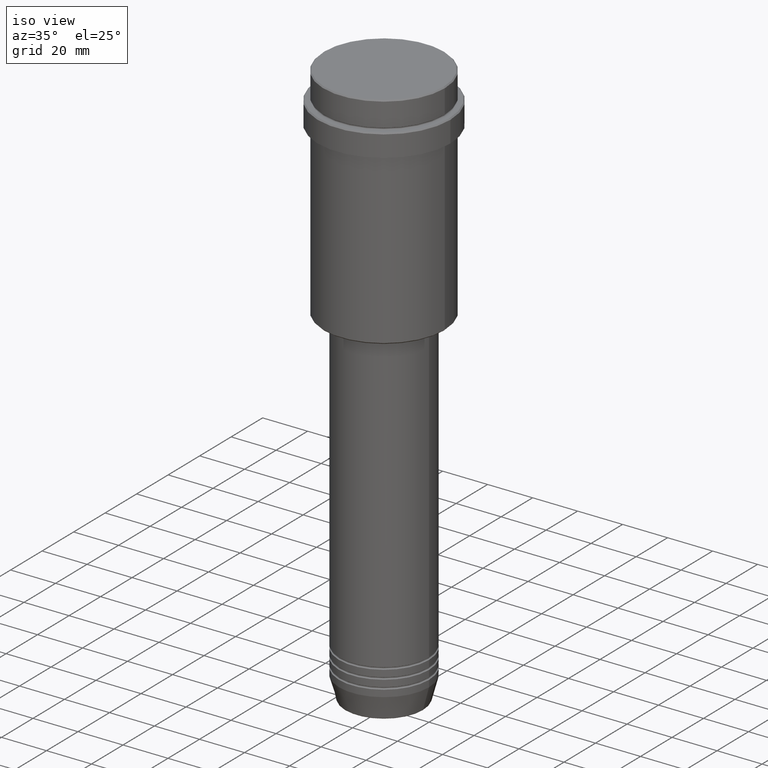
[diagram: clean part render]
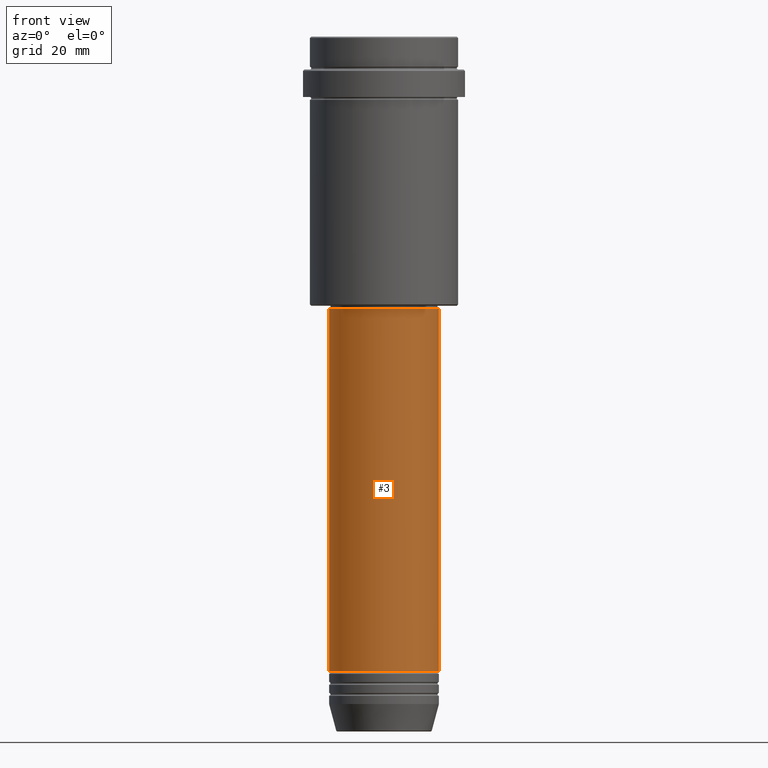
[diagram: tour spotlight — one face highlighted and labeled with its STEP entity id]
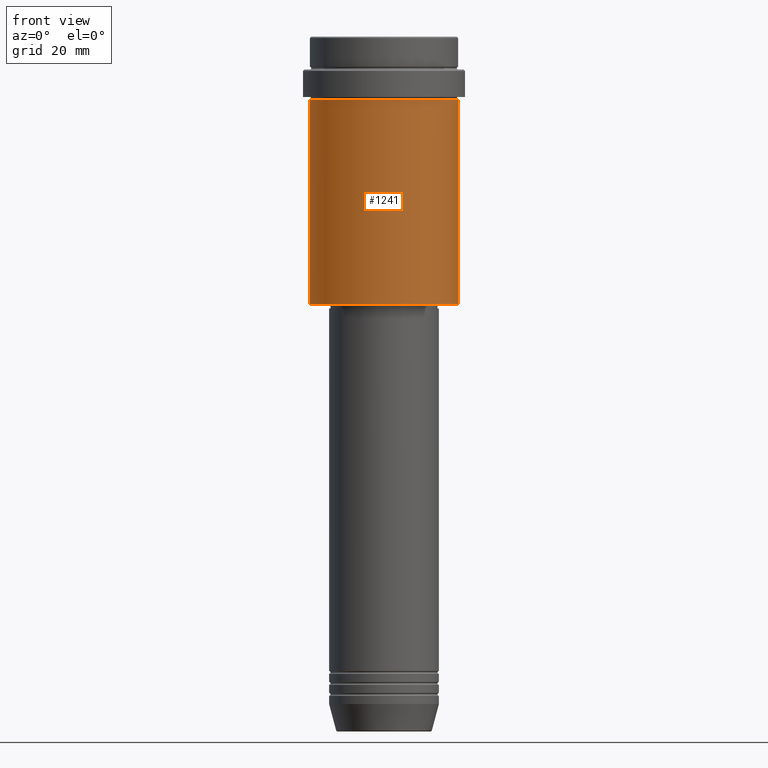
[diagram: tour spotlight — one face highlighted and labeled with its STEP entity id]
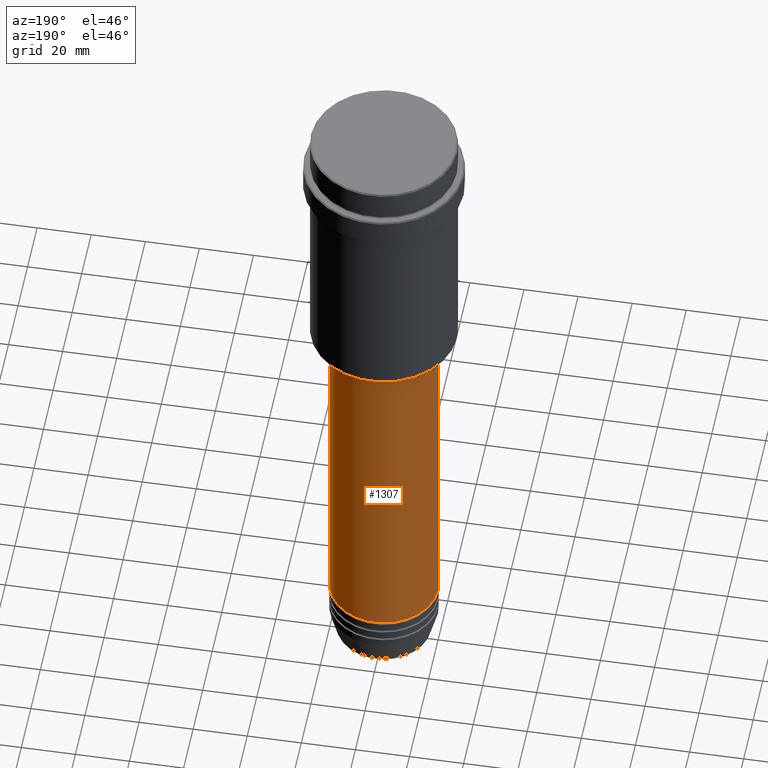
[diagram: tour spotlight — one face highlighted and labeled with its STEP entity id]
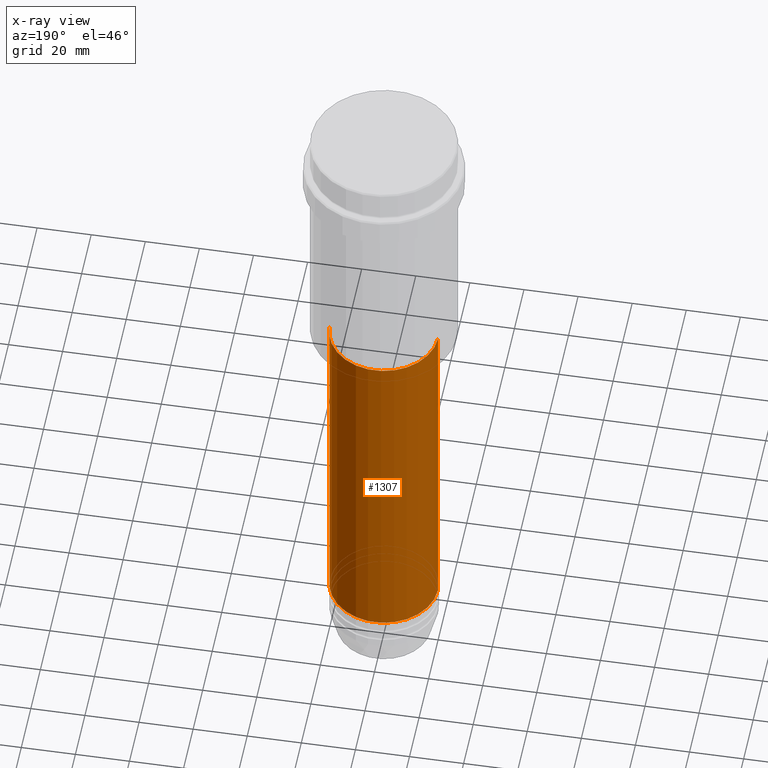
[diagram: x-ray of the same camera — body ghosted, this tour face saturated]
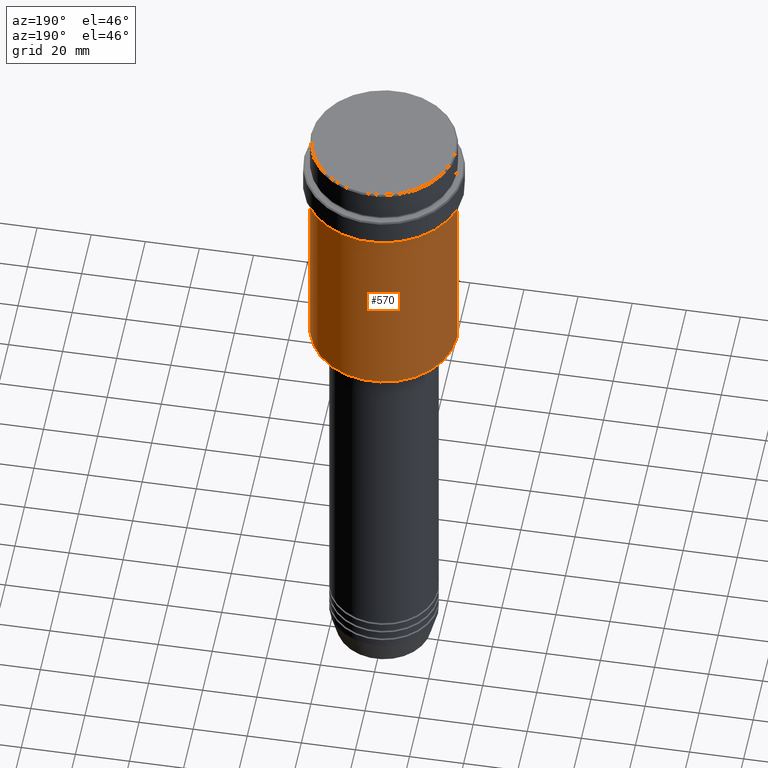
[diagram: tour spotlight — one face highlighted and labeled with its STEP entity id]
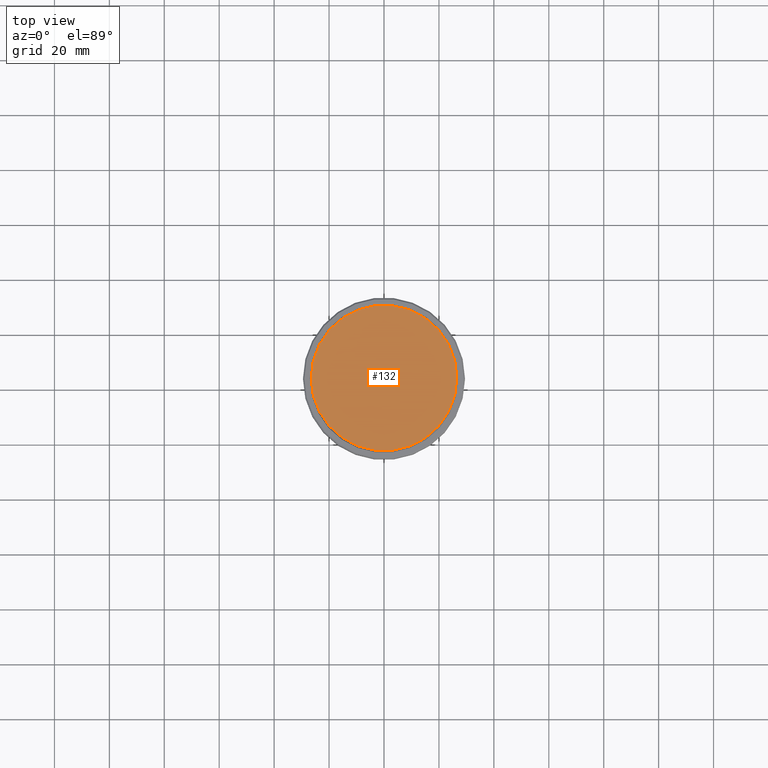
[diagram: tour spotlight — one face highlighted and labeled with its STEP entity id]
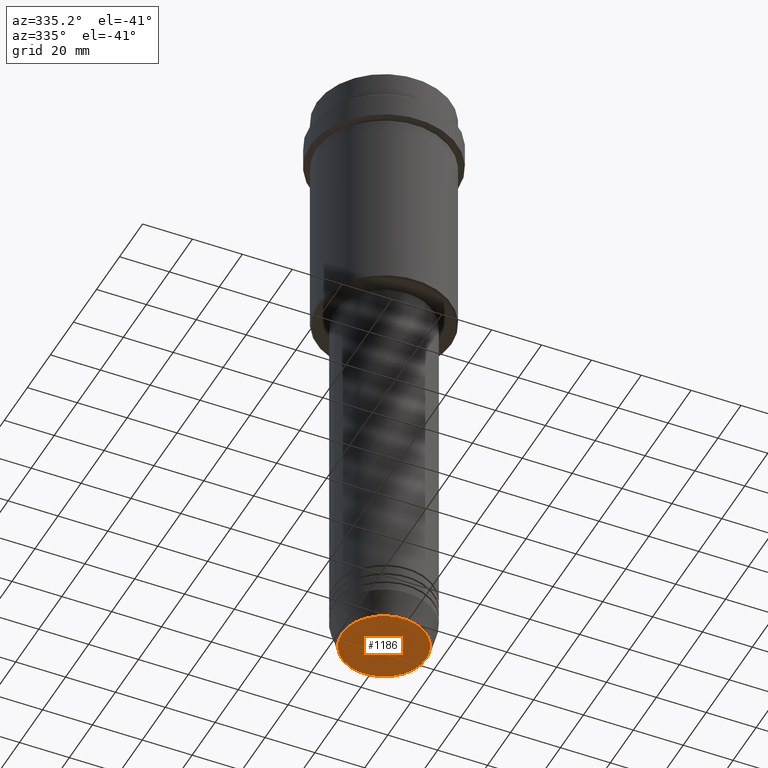
[diagram: tour spotlight — one face highlighted and labeled with its STEP entity id]
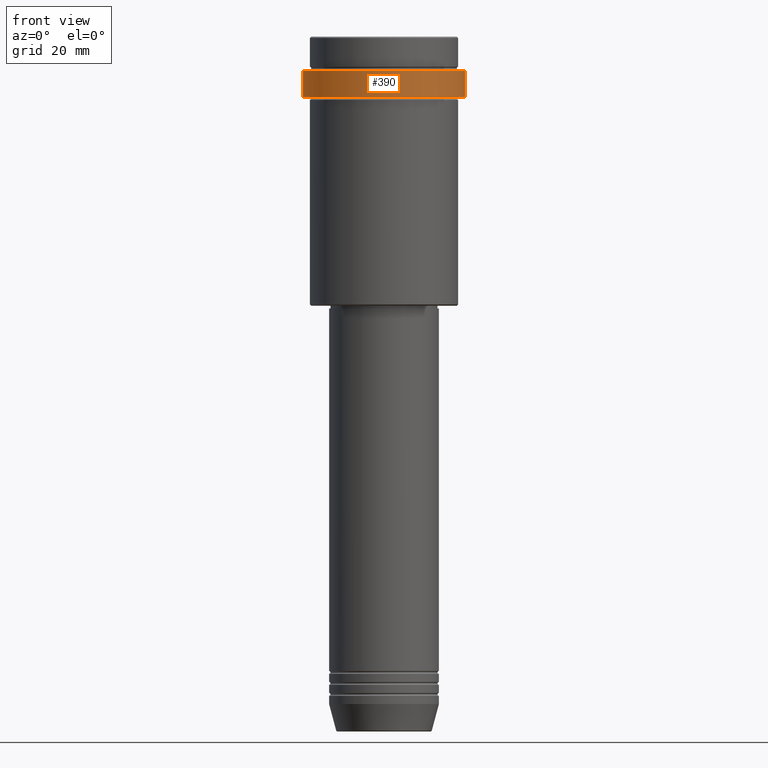
[diagram: tour spotlight — one face highlighted and labeled with its STEP entity id]
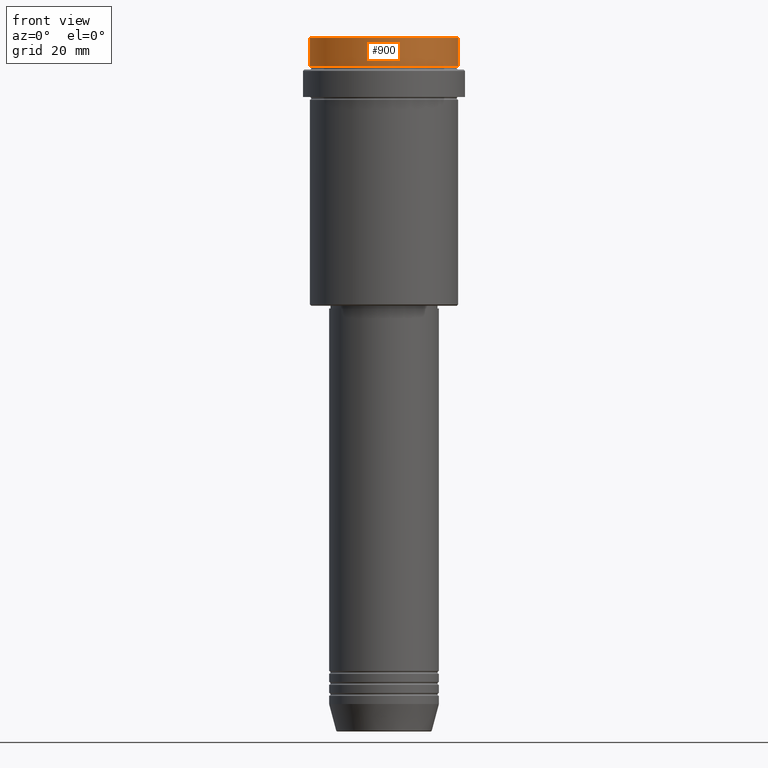
[diagram: tour spotlight — one face highlighted and labeled with its STEP entity id]
A machine part: a face-by-face anatomy tour. The part has 52 B-rep faces; the first image is the clean iso view, then the 8 largest visible faces are spotlighted one at a time (largest first), each with its STEP entity span.

Face 1 — front view, entity #3. In plain terms, the highlighted cylindrical surface (partial cylindrical patch) has radius 20 mm, axis along (-0, -0, 1).
Definition (entity closure, byte-faithful):
#3 = ADVANCED_FACE ( 'NONE', ( #849 ), #1287, .T. ) ;
#5 = AXIS2_PLACEMENT_3D ( 'NONE', #869, #317, #537 ) ;
#75 = DIRECTION ( 'NONE',  ( -0.000000000000000000, -0.000000000000000000, 1.000000000000000000 ) ) ;
#76 = AXIS2_PLACEMENT_3D ( 'NONE', #133, #586, #392 ) ;
#95 = CARTESIAN_POINT ( 'NONE',  ( -20.00000000000000000, 2.449293598294706513E-15, -99.00000000000000000 ) ) ;
#133 = CARTESIAN_POINT ( 'NONE',  ( 0.000000000000000000, 0.000000000000000000, -99.00000000000000000 ) ) ;
#317 = DIRECTION ( 'NONE',  ( -0.000000000000000000, -0.000000000000000000, 1.000000000000000000 ) ) ;
#331 = VECTOR ( 'NONE', #75, 1000.000000000000000 ) ;
#392 = DIRECTION ( 'NONE',  ( 1.000000000000000000, 0.000000000000000000, 0.000000000000000000 ) ) ;
#447 = CIRCLE ( 'NONE', #1027, 20.00000000000000000 ) ;
#475 = CARTESIAN_POINT ( 'NONE',  ( 20.00000000000000000, 0.000000000000000000, -230.9999999999998863 ) ) ;
#527 = VERTEX_POINT ( 'NONE', #1321 ) ;
#536 = LINE ( 'NONE', #1067, #331 ) ;
#537 = DIRECTION ( 'NONE',  ( 1.000000000000000000, 0.000000000000000000, 0.000000000000000000 ) ) ;
#586 = DIRECTION ( 'NONE',  ( -0.000000000000000000, -0.000000000000000000, 1.000000000000000000 ) ) ;
#623 = VERTEX_POINT ( 'NONE', #1150 ) ;
#642 = LINE ( 'NONE', #1017, #1378 ) ;
#684 = VERTEX_POINT ( 'NONE', #475 ) ;
#691 = EDGE_CURVE ( 'NONE', #1204, #527, #1383, .T. ) ;
#766 = CARTESIAN_POINT ( 'NONE',  ( 0.000000000000000000, 0.000000000000000000, -230.9999999999998863 ) ) ;
#795 = EDGE_LOOP ( 'NONE', ( #1366, #1270, #949, #829 ) ) ;
#829 = ORIENTED_EDGE ( 'NONE', *, *, #691, .F. ) ;
#849 = FACE_OUTER_BOUND ( 'NONE', #795, .T. ) ;
#869 = CARTESIAN_POINT ( 'NONE',  ( 0.000000000000000000, 0.000000000000000000, 0.000000000000000000 ) ) ;
#910 = EDGE_CURVE ( 'NONE', #623, #1204, #642, .T. ) ;
#949 = ORIENTED_EDGE ( 'NONE', *, *, #1290, .T. ) ;
#966 = DIRECTION ( 'NONE',  ( 1.000000000000000000, 0.000000000000000000, 0.000000000000000000 ) ) ;
#1017 = CARTESIAN_POINT ( 'NONE',  ( -20.00000000000000000, 2.449293598294706513E-15, 0.000000000000000000 ) ) ;
#1027 = AXIS2_PLACEMENT_3D ( 'NONE', #766, #1208, #966 ) ;
#1067 = CARTESIAN_POINT ( 'NONE',  ( 20.00000000000000000, 0.000000000000000000, 0.000000000000000000 ) ) ;
#1092 = DIRECTION ( 'NONE',  ( -0.000000000000000000, -0.000000000000000000, 1.000000000000000000 ) ) ;
#1150 = CARTESIAN_POINT ( 'NONE',  ( -20.00000000000000000, 2.449293598294706513E-15, -230.9999999999998863 ) ) ;
#1204 = VERTEX_POINT ( 'NONE', #95 ) ;
#1208 = DIRECTION ( 'NONE',  ( -0.000000000000000000, -0.000000000000000000, 1.000000000000000000 ) ) ;
#1234 = EDGE_CURVE ( 'NONE', #623, #684, #447, .T. ) ;
#1270 = ORIENTED_EDGE ( 'NONE', *, *, #1234, .T. ) ;
#1287 = CYLINDRICAL_SURFACE ( 'NONE', #5, 20.00000000000000000 ) ;
#1290 = EDGE_CURVE ( 'NONE', #684, #527, #536, .T. ) ;
#1321 = CARTESIAN_POINT ( 'NONE',  ( 20.00000000000000000, 0.000000000000000000, -99.00000000000000000 ) ) ;
#1366 = ORIENTED_EDGE ( 'NONE', *, *, #910, .F. ) ;
#1378 = VECTOR ( 'NONE', #1092, 1000.000000000000000 ) ;
#1383 = CIRCLE ( 'NONE', #76, 20.00000000000000000 ) ;

Face 2 — front view, entity #1241. In plain terms, the highlighted cylindrical surface (partial cylindrical patch) has radius 27 mm, axis along (-0, -0, 1).
Definition (entity closure, byte-faithful):
#31 = AXIS2_PLACEMENT_3D ( 'NONE', #218, #1239, #804 ) ;
#58 = EDGE_CURVE ( 'NONE', #122, #297, #619, .T. ) ;
#102 = DIRECTION ( 'NONE',  ( -1.000000000000000000, 0.000000000000000000, 0.000000000000000000 ) ) ;
#122 = VERTEX_POINT ( 'NONE', #486 ) ;
#200 = CARTESIAN_POINT ( 'NONE',  ( 0.000000000000000000, 0.000000000000000000, 0.000000000000000000 ) ) ;
#206 = VECTOR ( 'NONE', #1371, 1000.000000000000000 ) ;
#218 = CARTESIAN_POINT ( 'NONE',  ( 0.000000000000000000, 0.000000000000000000, -23.00000000000001421 ) ) ;
#246 = VERTEX_POINT ( 'NONE', #411 ) ;
#295 = EDGE_LOOP ( 'NONE', ( #1289, #723, #337, #653 ) ) ;
#297 = VERTEX_POINT ( 'NONE', #1350 ) ;
#322 = DIRECTION ( 'NONE',  ( 1.000000000000000000, 0.000000000000000000, 0.000000000000000000 ) ) ;
#337 = ORIENTED_EDGE ( 'NONE', *, *, #1152, .T. ) ;
#411 = CARTESIAN_POINT ( 'NONE',  ( 27.00000000000000355, 0.000000000000000000, -97.50000000000004263 ) ) ;
#451 = LINE ( 'NONE', #680, #696 ) ;
#480 = EDGE_CURVE ( 'NONE', #1346, #122, #451, .T. ) ;
#486 = CARTESIAN_POINT ( 'NONE',  ( -27.00000000000000355, 3.306546357697854128E-15, -23.00000000000001421 ) ) ;
#588 = EDGE_CURVE ( 'NONE', #1346, #246, #865, .T. ) ;
#619 = CIRCLE ( 'NONE', #31, 27.00000000000000355 ) ;
#640 = FACE_OUTER_BOUND ( 'NONE', #295, .T. ) ;
#653 = ORIENTED_EDGE ( 'NONE', *, *, #58, .F. ) ;
#675 = AXIS2_PLACEMENT_3D ( 'NONE', #906, #798, #102 ) ;
#680 = CARTESIAN_POINT ( 'NONE',  ( -27.00000000000000355, 3.306546357697854128E-15, 0.000000000000000000 ) ) ;
#688 = LINE ( 'NONE', #942, #206 ) ;
#696 = VECTOR ( 'NONE', #1206, 1000.000000000000000 ) ;
#723 = ORIENTED_EDGE ( 'NONE', *, *, #588, .T. ) ;
#798 = DIRECTION ( 'NONE',  ( -0.000000000000000000, -0.000000000000000000, 1.000000000000000000 ) ) ;
#804 = DIRECTION ( 'NONE',  ( 1.000000000000000000, 0.000000000000000000, 0.000000000000000000 ) ) ;
#865 = CIRCLE ( 'NONE', #675, 27.00000000000000355 ) ;
#906 = CARTESIAN_POINT ( 'NONE',  ( 0.000000000000000000, 0.000000000000000000, -97.50000000000004263 ) ) ;
#935 = AXIS2_PLACEMENT_3D ( 'NONE', #200, #1306, #322 ) ;
#942 = CARTESIAN_POINT ( 'NONE',  ( 27.00000000000000355, 0.000000000000000000, 0.000000000000000000 ) ) ;
#1152 = EDGE_CURVE ( 'NONE', #246, #297, #688, .T. ) ;
#1178 = CYLINDRICAL_SURFACE ( 'NONE', #935, 27.00000000000000355 ) ;
#1206 = DIRECTION ( 'NONE',  ( -0.000000000000000000, -0.000000000000000000, 1.000000000000000000 ) ) ;
#1239 = DIRECTION ( 'NONE',  ( -0.000000000000000000, -0.000000000000000000, 1.000000000000000000 ) ) ;
#1241 = ADVANCED_FACE ( 'NONE', ( #640 ), #1178, .T. ) ;
#1289 = ORIENTED_EDGE ( 'NONE', *, *, #480, .F. ) ;
#1302 = CARTESIAN_POINT ( 'NONE',  ( -27.00000000000000355, 3.306546357697854128E-15, -97.50000000000004263 ) ) ;
#1306 = DIRECTION ( 'NONE',  ( -0.000000000000000000, -0.000000000000000000, 1.000000000000000000 ) ) ;
#1346 = VERTEX_POINT ( 'NONE', #1302 ) ;
#1350 = CARTESIAN_POINT ( 'NONE',  ( 27.00000000000000355, 0.000000000000000000, -23.00000000000001421 ) ) ;
#1371 = DIRECTION ( 'NONE',  ( -0.000000000000000000, -0.000000000000000000, 1.000000000000000000 ) ) ;

Face 3 — auxiliary view, entity #1307. An x-ray twin of the same camera follows (body ghosted, this face saturated) — the face is partly hidden behind the body. In plain terms, the highlighted cylindrical surface (partial cylindrical patch) has radius 20 mm, axis along (-0, -0, 1).
Definition (entity closure, byte-faithful):
#75 = DIRECTION ( 'NONE',  ( -0.000000000000000000, -0.000000000000000000, 1.000000000000000000 ) ) ;
#95 = CARTESIAN_POINT ( 'NONE',  ( -20.00000000000000000, 2.449293598294706513E-15, -99.00000000000000000 ) ) ;
#104 = DIRECTION ( 'NONE',  ( -0.000000000000000000, -0.000000000000000000, 1.000000000000000000 ) ) ;
#119 = AXIS2_PLACEMENT_3D ( 'NONE', #1121, #803, #894 ) ;
#151 = EDGE_CURVE ( 'NONE', #527, #1204, #485, .T. ) ;
#193 = FACE_OUTER_BOUND ( 'NONE', #517, .T. ) ;
#275 = DIRECTION ( 'NONE',  ( 1.000000000000000000, 0.000000000000000000, 0.000000000000000000 ) ) ;
#310 = DIRECTION ( 'NONE',  ( 1.000000000000000000, 0.000000000000000000, 0.000000000000000000 ) ) ;
#331 = VECTOR ( 'NONE', #75, 1000.000000000000000 ) ;
#347 = CARTESIAN_POINT ( 'NONE',  ( 0.000000000000000000, 0.000000000000000000, -99.00000000000000000 ) ) ;
#434 = ORIENTED_EDGE ( 'NONE', *, *, #910, .T. ) ;
#475 = CARTESIAN_POINT ( 'NONE',  ( 20.00000000000000000, 0.000000000000000000, -230.9999999999998863 ) ) ;
#485 = CIRCLE ( 'NONE', #671, 20.00000000000000000 ) ;
#514 = ORIENTED_EDGE ( 'NONE', *, *, #151, .F. ) ;
#517 = EDGE_LOOP ( 'NONE', ( #726, #434, #514, #1320 ) ) ;
#527 = VERTEX_POINT ( 'NONE', #1321 ) ;
#536 = LINE ( 'NONE', #1067, #331 ) ;
#623 = VERTEX_POINT ( 'NONE', #1150 ) ;
#642 = LINE ( 'NONE', #1017, #1378 ) ;
#671 = AXIS2_PLACEMENT_3D ( 'NONE', #347, #689, #275 ) ;
#684 = VERTEX_POINT ( 'NONE', #475 ) ;
#689 = DIRECTION ( 'NONE',  ( -0.000000000000000000, -0.000000000000000000, 1.000000000000000000 ) ) ;
#726 = ORIENTED_EDGE ( 'NONE', *, *, #1408, .T. ) ;
#743 = CIRCLE ( 'NONE', #119, 20.00000000000000000 ) ;
#803 = DIRECTION ( 'NONE',  ( -0.000000000000000000, -0.000000000000000000, 1.000000000000000000 ) ) ;
#894 = DIRECTION ( 'NONE',  ( 1.000000000000000000, 0.000000000000000000, 0.000000000000000000 ) ) ;
#910 = EDGE_CURVE ( 'NONE', #623, #1204, #642, .T. ) ;
#954 = AXIS2_PLACEMENT_3D ( 'NONE', #1291, #104, #310 ) ;
#1017 = CARTESIAN_POINT ( 'NONE',  ( -20.00000000000000000, 2.449293598294706513E-15, 0.000000000000000000 ) ) ;
#1067 = CARTESIAN_POINT ( 'NONE',  ( 20.00000000000000000, 0.000000000000000000, 0.000000000000000000 ) ) ;
#1092 = DIRECTION ( 'NONE',  ( -0.000000000000000000, -0.000000000000000000, 1.000000000000000000 ) ) ;
#1121 = CARTESIAN_POINT ( 'NONE',  ( 0.000000000000000000, 0.000000000000000000, -230.9999999999998863 ) ) ;
#1150 = CARTESIAN_POINT ( 'NONE',  ( -20.00000000000000000, 2.449293598294706513E-15, -230.9999999999998863 ) ) ;
#1204 = VERTEX_POINT ( 'NONE', #95 ) ;
#1290 = EDGE_CURVE ( 'NONE', #684, #527, #536, .T. ) ;
#1291 = CARTESIAN_POINT ( 'NONE',  ( 0.000000000000000000, 0.000000000000000000, 0.000000000000000000 ) ) ;
#1307 = ADVANCED_FACE ( 'NONE', ( #193 ), #1388, .T. ) ;
#1320 = ORIENTED_EDGE ( 'NONE', *, *, #1290, .F. ) ;
#1321 = CARTESIAN_POINT ( 'NONE',  ( 20.00000000000000000, 0.000000000000000000, -99.00000000000000000 ) ) ;
#1378 = VECTOR ( 'NONE', #1092, 1000.000000000000000 ) ;
#1388 = CYLINDRICAL_SURFACE ( 'NONE', #954, 20.00000000000000000 ) ;
#1408 = EDGE_CURVE ( 'NONE', #684, #623, #743, .T. ) ;

Face 4 — auxiliary view, entity #570. In plain terms, the highlighted cylindrical surface (partial cylindrical patch) has radius 27 mm, axis along (-0, -0, 1).
Definition (entity closure, byte-faithful):
#11 = CARTESIAN_POINT ( 'NONE',  ( 0.000000000000000000, 0.000000000000000000, 0.000000000000000000 ) ) ;
#25 = CYLINDRICAL_SURFACE ( 'NONE', #448, 27.00000000000000355 ) ;
#122 = VERTEX_POINT ( 'NONE', #486 ) ;
#135 = ORIENTED_EDGE ( 'NONE', *, *, #1152, .F. ) ;
#163 = AXIS2_PLACEMENT_3D ( 'NONE', #1222, #366, #791 ) ;
#206 = VECTOR ( 'NONE', #1371, 1000.000000000000000 ) ;
#246 = VERTEX_POINT ( 'NONE', #411 ) ;
#253 = AXIS2_PLACEMENT_3D ( 'NONE', #433, #1000, #343 ) ;
#255 = CIRCLE ( 'NONE', #163, 27.00000000000000355 ) ;
#297 = VERTEX_POINT ( 'NONE', #1350 ) ;
#343 = DIRECTION ( 'NONE',  ( 1.000000000000000000, 0.000000000000000000, 0.000000000000000000 ) ) ;
#366 = DIRECTION ( 'NONE',  ( -0.000000000000000000, -0.000000000000000000, 1.000000000000000000 ) ) ;
#411 = CARTESIAN_POINT ( 'NONE',  ( 27.00000000000000355, 0.000000000000000000, -97.50000000000004263 ) ) ;
#433 = CARTESIAN_POINT ( 'NONE',  ( 0.000000000000000000, 0.000000000000000000, -23.00000000000001421 ) ) ;
#448 = AXIS2_PLACEMENT_3D ( 'NONE', #11, #901, #1325 ) ;
#451 = LINE ( 'NONE', #680, #696 ) ;
#480 = EDGE_CURVE ( 'NONE', #1346, #122, #451, .T. ) ;
#486 = CARTESIAN_POINT ( 'NONE',  ( -27.00000000000000355, 3.306546357697854128E-15, -23.00000000000001421 ) ) ;
#554 = FACE_OUTER_BOUND ( 'NONE', #668, .T. ) ;
#570 = ADVANCED_FACE ( 'NONE', ( #554 ), #25, .T. ) ;
#668 = EDGE_LOOP ( 'NONE', ( #986, #961, #817, #135 ) ) ;
#680 = CARTESIAN_POINT ( 'NONE',  ( -27.00000000000000355, 3.306546357697854128E-15, 0.000000000000000000 ) ) ;
#688 = LINE ( 'NONE', #942, #206 ) ;
#696 = VECTOR ( 'NONE', #1206, 1000.000000000000000 ) ;
#791 = DIRECTION ( 'NONE',  ( -1.000000000000000000, 0.000000000000000000, 0.000000000000000000 ) ) ;
#808 = CIRCLE ( 'NONE', #253, 27.00000000000000355 ) ;
#817 = ORIENTED_EDGE ( 'NONE', *, *, #939, .F. ) ;
#901 = DIRECTION ( 'NONE',  ( -0.000000000000000000, -0.000000000000000000, 1.000000000000000000 ) ) ;
#939 = EDGE_CURVE ( 'NONE', #297, #122, #808, .T. ) ;
#942 = CARTESIAN_POINT ( 'NONE',  ( 27.00000000000000355, 0.000000000000000000, 0.000000000000000000 ) ) ;
#961 = ORIENTED_EDGE ( 'NONE', *, *, #480, .T. ) ;
#986 = ORIENTED_EDGE ( 'NONE', *, *, #1352, .T. ) ;
#1000 = DIRECTION ( 'NONE',  ( -0.000000000000000000, -0.000000000000000000, 1.000000000000000000 ) ) ;
#1152 = EDGE_CURVE ( 'NONE', #246, #297, #688, .T. ) ;
#1206 = DIRECTION ( 'NONE',  ( -0.000000000000000000, -0.000000000000000000, 1.000000000000000000 ) ) ;
#1222 = CARTESIAN_POINT ( 'NONE',  ( 0.000000000000000000, 0.000000000000000000, -97.50000000000004263 ) ) ;
#1302 = CARTESIAN_POINT ( 'NONE',  ( -27.00000000000000355, 3.306546357697854128E-15, -97.50000000000004263 ) ) ;
#1325 = DIRECTION ( 'NONE',  ( 1.000000000000000000, 0.000000000000000000, 0.000000000000000000 ) ) ;
#1346 = VERTEX_POINT ( 'NONE', #1302 ) ;
#1350 = CARTESIAN_POINT ( 'NONE',  ( 27.00000000000000355, 0.000000000000000000, -23.00000000000001421 ) ) ;
#1352 = EDGE_CURVE ( 'NONE', #246, #1346, #255, .T. ) ;
#1371 = DIRECTION ( 'NONE',  ( -0.000000000000000000, -0.000000000000000000, 1.000000000000000000 ) ) ;

Face 5 — top view, entity #132. In plain terms, the highlighted planar face has unit normal (0, -0, 1).
Definition (entity closure, byte-faithful):
#2 = PLANE ( 'NONE',  #426 ) ;
#98 = CIRCLE ( 'NONE', #143, 26.49999999999999645 ) ;
#132 = ADVANCED_FACE ( 'NONE', ( #549 ), #2, .T. ) ;
#143 = AXIS2_PLACEMENT_3D ( 'NONE', #854, #1086, #1196 ) ;
#191 = EDGE_LOOP ( 'NONE', ( #370, #1188 ) ) ;
#221 = DIRECTION ( 'NONE',  ( 0.000000000000000000, -0.000000000000000000, 1.000000000000000000 ) ) ;
#354 = VERTEX_POINT ( 'NONE', #1279 ) ;
#370 = ORIENTED_EDGE ( 'NONE', *, *, #1076, .T. ) ;
#406 = DIRECTION ( 'NONE',  ( -0.000000000000000000, -0.000000000000000000, 1.000000000000000000 ) ) ;
#426 = AXIS2_PLACEMENT_3D ( 'NONE', #1255, #221, #1109 ) ;
#443 = EDGE_CURVE ( 'NONE', #354, #553, #98, .T. ) ;
#549 = FACE_OUTER_BOUND ( 'NONE', #191, .T. ) ;
#553 = VERTEX_POINT ( 'NONE', #1340 ) ;
#585 = DIRECTION ( 'NONE',  ( 1.000000000000000000, 0.000000000000000000, 0.000000000000000000 ) ) ;
#854 = CARTESIAN_POINT ( 'NONE',  ( 0.000000000000000000, 0.000000000000000000, 0.000000000000000000 ) ) ;
#857 = CIRCLE ( 'NONE', #932, 26.49999999999999645 ) ;
#932 = AXIS2_PLACEMENT_3D ( 'NONE', #1062, #406, #585 ) ;
#1062 = CARTESIAN_POINT ( 'NONE',  ( 0.000000000000000000, 0.000000000000000000, 0.000000000000000000 ) ) ;
#1076 = EDGE_CURVE ( 'NONE', #553, #354, #857, .T. ) ;
#1086 = DIRECTION ( 'NONE',  ( -0.000000000000000000, -0.000000000000000000, 1.000000000000000000 ) ) ;
#1109 = DIRECTION ( 'NONE',  ( 1.000000000000000000, 0.000000000000000000, 0.000000000000000000 ) ) ;
#1188 = ORIENTED_EDGE ( 'NONE', *, *, #443, .T. ) ;
#1196 = DIRECTION ( 'NONE',  ( 1.000000000000000000, 0.000000000000000000, 0.000000000000000000 ) ) ;
#1255 = CARTESIAN_POINT ( 'NONE',  ( 0.000000000000000000, 0.000000000000000000, 0.000000000000000000 ) ) ;
#1279 = CARTESIAN_POINT ( 'NONE',  ( 26.49999999999999645, 3.275930187719169552E-15, 0.000000000000000000 ) ) ;
#1340 = CARTESIAN_POINT ( 'NONE',  ( -26.49999999999999645, 0.000000000000000000, 0.000000000000000000 ) ) ;

Face 6 — auxiliary view, entity #1186. In plain terms, the highlighted planar face has unit normal (0, -0, 1).
Definition (entity closure, byte-faithful):
#208 = AXIS2_PLACEMENT_3D ( 'NONE', #1381, #733, #1173 ) ;
#216 = DIRECTION ( 'NONE',  ( 1.000000000000000000, 0.000000000000000000, 0.000000000000000000 ) ) ;
#273 = CARTESIAN_POINT ( 'NONE',  ( 16.93684458169928675, 0.000000000000000000, -253.0000000000000000 ) ) ;
#288 = EDGE_CURVE ( 'NONE', #1133, #755, #773, .T. ) ;
#442 = DIRECTION ( 'NONE',  ( 0.000000000000000000, 0.000000000000000000, -1.000000000000000000 ) ) ;
#468 = CIRCLE ( 'NONE', #1227, 16.93684458169928675 ) ;
#504 = FACE_OUTER_BOUND ( 'NONE', #676, .T. ) ;
#626 = CARTESIAN_POINT ( 'NONE',  ( 0.000000000000000000, 0.000000000000000000, -253.0000000000000000 ) ) ;
#651 = DIRECTION ( 'NONE',  ( 0.000000000000000000, 0.000000000000000000, -1.000000000000000000 ) ) ;
#659 = ORIENTED_EDGE ( 'NONE', *, *, #1282, .T. ) ;
#676 = EDGE_LOOP ( 'NONE', ( #702, #659 ) ) ;
#702 = ORIENTED_EDGE ( 'NONE', *, *, #288, .T. ) ;
#733 = DIRECTION ( 'NONE',  ( 0.000000000000000000, -0.000000000000000000, 1.000000000000000000 ) ) ;
#755 = VERTEX_POINT ( 'NONE', #962 ) ;
#773 = CIRCLE ( 'NONE', #1119, 16.93684458169928675 ) ;
#848 = DIRECTION ( 'NONE',  ( 1.000000000000000000, 0.000000000000000000, 0.000000000000000000 ) ) ;
#951 = PLANE ( 'NONE',  #208 ) ;
#962 = CARTESIAN_POINT ( 'NONE',  ( -16.93684458169928675, 2.103738199747889592E-15, -253.0000000000000000 ) ) ;
#1119 = AXIS2_PLACEMENT_3D ( 'NONE', #626, #442, #848 ) ;
#1133 = VERTEX_POINT ( 'NONE', #273 ) ;
#1173 = DIRECTION ( 'NONE',  ( 1.000000000000000000, 0.000000000000000000, 0.000000000000000000 ) ) ;
#1186 = ADVANCED_FACE ( 'NONE', ( #504 ), #951, .F. ) ;
#1197 = CARTESIAN_POINT ( 'NONE',  ( 0.000000000000000000, 0.000000000000000000, -253.0000000000000000 ) ) ;
#1227 = AXIS2_PLACEMENT_3D ( 'NONE', #1197, #651, #216 ) ;
#1282 = EDGE_CURVE ( 'NONE', #755, #1133, #468, .T. ) ;
#1381 = CARTESIAN_POINT ( 'NONE',  ( 0.000000000000000000, 0.000000000000000000, -253.0000000000000000 ) ) ;

Face 7 — front view, entity #390. In plain terms, the highlighted cylindrical surface (partial cylindrical patch) has radius 29.5 mm, axis along (-0, -0, 1).
Definition (entity closure, byte-faithful):
#1 = LINE ( 'NONE', #1125, #1316 ) ;
#89 = EDGE_CURVE ( 'NONE', #382, #1056, #507, .T. ) ;
#205 = CARTESIAN_POINT ( 'NONE',  ( -29.50000000000000000, 3.612708057484691604E-15, -12.50000000000003197 ) ) ;
#242 = ORIENTED_EDGE ( 'NONE', *, *, #513, .F. ) ;
#260 = EDGE_LOOP ( 'NONE', ( #242, #1284, #334, #501 ) ) ;
#291 = DIRECTION ( 'NONE',  ( 1.000000000000000000, 0.000000000000000000, 0.000000000000000000 ) ) ;
#334 = ORIENTED_EDGE ( 'NONE', *, *, #1166, .T. ) ;
#356 = AXIS2_PLACEMENT_3D ( 'NONE', #841, #1259, #291 ) ;
#382 = VERTEX_POINT ( 'NONE', #1066 ) ;
#390 = ADVANCED_FACE ( 'NONE', ( #511 ), #872, .T. ) ;
#395 = LINE ( 'NONE', #1275, #397 ) ;
#397 = VECTOR ( 'NONE', #727, 1000.000000000000000 ) ;
#430 = DIRECTION ( 'NONE',  ( 0.000000000000000000, 0.000000000000000000, -1.000000000000000000 ) ) ;
#446 = DIRECTION ( 'NONE',  ( -0.000000000000000000, -0.000000000000000000, 1.000000000000000000 ) ) ;
#477 = VERTEX_POINT ( 'NONE', #205 ) ;
#501 = ORIENTED_EDGE ( 'NONE', *, *, #1343, .T. ) ;
#507 = CIRCLE ( 'NONE', #356, 29.49999999999999645 ) ;
#511 = FACE_OUTER_BOUND ( 'NONE', #260, .T. ) ;
#513 = EDGE_CURVE ( 'NONE', #382, #477, #1, .T. ) ;
#574 = CARTESIAN_POINT ( 'NONE',  ( 29.49999999999999645, 0.000000000000000000, -22.00000000000000711 ) ) ;
#583 = AXIS2_PLACEMENT_3D ( 'NONE', #1401, #430, #868 ) ;
#727 = DIRECTION ( 'NONE',  ( -0.000000000000000000, -0.000000000000000000, 1.000000000000000000 ) ) ;
#841 = CARTESIAN_POINT ( 'NONE',  ( 0.000000000000000000, 0.000000000000000000, -22.00000000000000711 ) ) ;
#868 = DIRECTION ( 'NONE',  ( 1.000000000000000000, 0.000000000000000000, 0.000000000000000000 ) ) ;
#872 = CYLINDRICAL_SURFACE ( 'NONE', #1341, 29.50000000000000000 ) ;
#909 = VERTEX_POINT ( 'NONE', #1201 ) ;
#912 = CIRCLE ( 'NONE', #583, 29.50000000000000000 ) ;
#958 = CARTESIAN_POINT ( 'NONE',  ( 0.000000000000000000, 0.000000000000000000, 0.000000000000000000 ) ) ;
#1056 = VERTEX_POINT ( 'NONE', #574 ) ;
#1066 = CARTESIAN_POINT ( 'NONE',  ( -29.49999999999999645, 3.612708057484690815E-15, -22.00000000000000711 ) ) ;
#1074 = DIRECTION ( 'NONE',  ( -0.000000000000000000, -0.000000000000000000, 1.000000000000000000 ) ) ;
#1125 = CARTESIAN_POINT ( 'NONE',  ( -29.50000000000000000, 3.612708057484691604E-15, 0.000000000000000000 ) ) ;
#1166 = EDGE_CURVE ( 'NONE', #1056, #909, #395, .T. ) ;
#1201 = CARTESIAN_POINT ( 'NONE',  ( 29.50000000000000000, 0.000000000000000000, -12.50000000000003197 ) ) ;
#1259 = DIRECTION ( 'NONE',  ( -0.000000000000000000, -0.000000000000000000, 1.000000000000000000 ) ) ;
#1275 = CARTESIAN_POINT ( 'NONE',  ( 29.50000000000000000, 0.000000000000000000, 0.000000000000000000 ) ) ;
#1284 = ORIENTED_EDGE ( 'NONE', *, *, #89, .T. ) ;
#1316 = VECTOR ( 'NONE', #446, 1000.000000000000000 ) ;
#1341 = AXIS2_PLACEMENT_3D ( 'NONE', #958, #1074, #1387 ) ;
#1343 = EDGE_CURVE ( 'NONE', #909, #477, #912, .T. ) ;
#1387 = DIRECTION ( 'NONE',  ( 1.000000000000000000, 0.000000000000000000, 0.000000000000000000 ) ) ;
#1401 = CARTESIAN_POINT ( 'NONE',  ( 0.000000000000000000, 0.000000000000000000, -12.50000000000003197 ) ) ;

Face 8 — front view, entity #900. In plain terms, the highlighted cylindrical surface (partial cylindrical patch) has radius 27 mm, axis along (-0, -0, 1).
Definition (entity closure, byte-faithful):
#42 = DIRECTION ( 'NONE',  ( 0.000000000000000000, 0.000000000000000000, -1.000000000000000000 ) ) ;
#44 = CARTESIAN_POINT ( 'NONE',  ( -27.00000000000000355, 3.306546357697854128E-15, 0.000000000000000000 ) ) ;
#69 = FACE_OUTER_BOUND ( 'NONE', #401, .T. ) ;
#78 = CYLINDRICAL_SURFACE ( 'NONE', #1043, 27.00000000000000355 ) ;
#152 = CARTESIAN_POINT ( 'NONE',  ( -27.00000000000000355, 3.306546357697854128E-15, -11.00000000000000178 ) ) ;
#177 = EDGE_CURVE ( 'NONE', #687, #464, #1187, .T. ) ;
#210 = CIRCLE ( 'NONE', #1276, 27.00000000000000355 ) ;
#256 = CIRCLE ( 'NONE', #1049, 27.00000000000000355 ) ;
#272 = VERTEX_POINT ( 'NONE', #152 ) ;
#276 = EDGE_CURVE ( 'NONE', #272, #687, #256, .T. ) ;
#377 = DIRECTION ( 'NONE',  ( -0.000000000000000000, -0.000000000000000000, 1.000000000000000000 ) ) ;
#401 = EDGE_LOOP ( 'NONE', ( #1096, #478, #778, #920 ) ) ;
#419 = DIRECTION ( 'NONE',  ( 1.000000000000000000, 0.000000000000000000, 0.000000000000000000 ) ) ;
#438 = DIRECTION ( 'NONE',  ( -0.000000000000000000, -0.000000000000000000, 1.000000000000000000 ) ) ;
#464 = VERTEX_POINT ( 'NONE', #1305 ) ;
#478 = ORIENTED_EDGE ( 'NONE', *, *, #276, .T. ) ;
#515 = CARTESIAN_POINT ( 'NONE',  ( 0.000000000000000000, 0.000000000000000000, 0.000000000000000000 ) ) ;
#521 = CARTESIAN_POINT ( 'NONE',  ( -27.00000000000000355, 3.306546357697854128E-15, -0.5000000000000350830 ) ) ;
#646 = EDGE_CURVE ( 'NONE', #464, #800, #210, .T. ) ;
#687 = VERTEX_POINT ( 'NONE', #815 ) ;
#718 = EDGE_CURVE ( 'NONE', #272, #800, #1367, .T. ) ;
#759 = DIRECTION ( 'NONE',  ( -0.000000000000000000, -0.000000000000000000, 1.000000000000000000 ) ) ;
#778 = ORIENTED_EDGE ( 'NONE', *, *, #177, .T. ) ;
#800 = VERTEX_POINT ( 'NONE', #521 ) ;
#815 = CARTESIAN_POINT ( 'NONE',  ( 27.00000000000000355, 0.000000000000000000, -11.00000000000000178 ) ) ;
#859 = VECTOR ( 'NONE', #759, 1000.000000000000000 ) ;
#884 = CARTESIAN_POINT ( 'NONE',  ( 27.00000000000000355, 0.000000000000000000, 0.000000000000000000 ) ) ;
#900 = ADVANCED_FACE ( 'NONE', ( #69 ), #78, .T. ) ;
#920 = ORIENTED_EDGE ( 'NONE', *, *, #646, .T. ) ;
#921 = CARTESIAN_POINT ( 'NONE',  ( 0.000000000000000000, 0.000000000000000000, -0.5000000000000350830 ) ) ;
#974 = CARTESIAN_POINT ( 'NONE',  ( 0.000000000000000000, 0.000000000000000000, -11.00000000000000178 ) ) ;
#1043 = AXIS2_PLACEMENT_3D ( 'NONE', #515, #1083, #1407 ) ;
#1049 = AXIS2_PLACEMENT_3D ( 'NONE', #974, #438, #419 ) ;
#1083 = DIRECTION ( 'NONE',  ( -0.000000000000000000, -0.000000000000000000, 1.000000000000000000 ) ) ;
#1096 = ORIENTED_EDGE ( 'NONE', *, *, #718, .F. ) ;
#1187 = LINE ( 'NONE', #884, #859 ) ;
#1276 = AXIS2_PLACEMENT_3D ( 'NONE', #921, #42, #1347 ) ;
#1305 = CARTESIAN_POINT ( 'NONE',  ( 27.00000000000000355, 0.000000000000000000, -0.5000000000000350830 ) ) ;
#1319 = VECTOR ( 'NONE', #377, 1000.000000000000000 ) ;
#1347 = DIRECTION ( 'NONE',  ( 1.000000000000000000, 0.000000000000000000, 0.000000000000000000 ) ) ;
#1367 = LINE ( 'NONE', #44, #1319 ) ;
#1407 = DIRECTION ( 'NONE',  ( 1.000000000000000000, 0.000000000000000000, 0.000000000000000000 ) ) ;